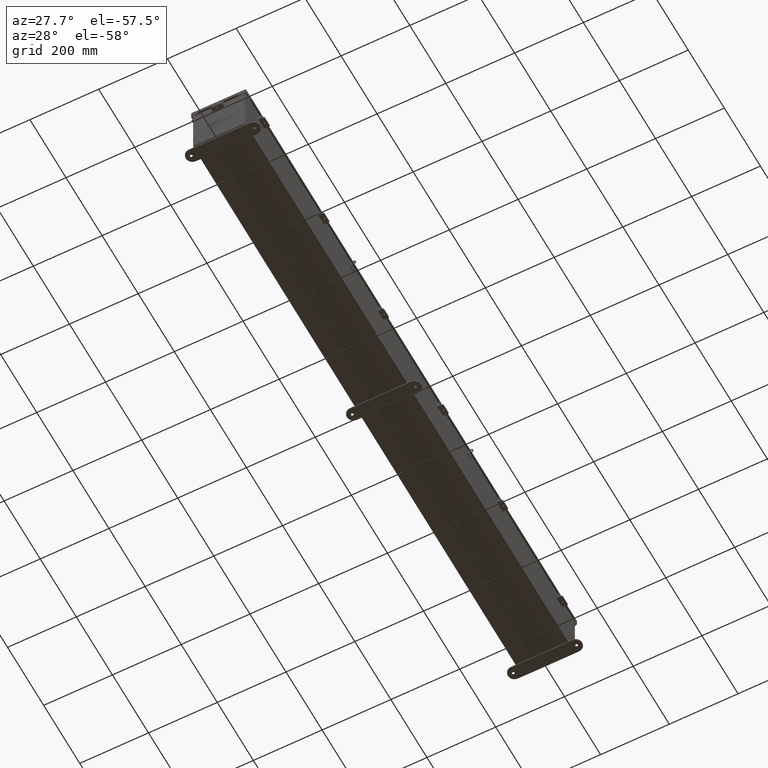
[diagram: clean part render]
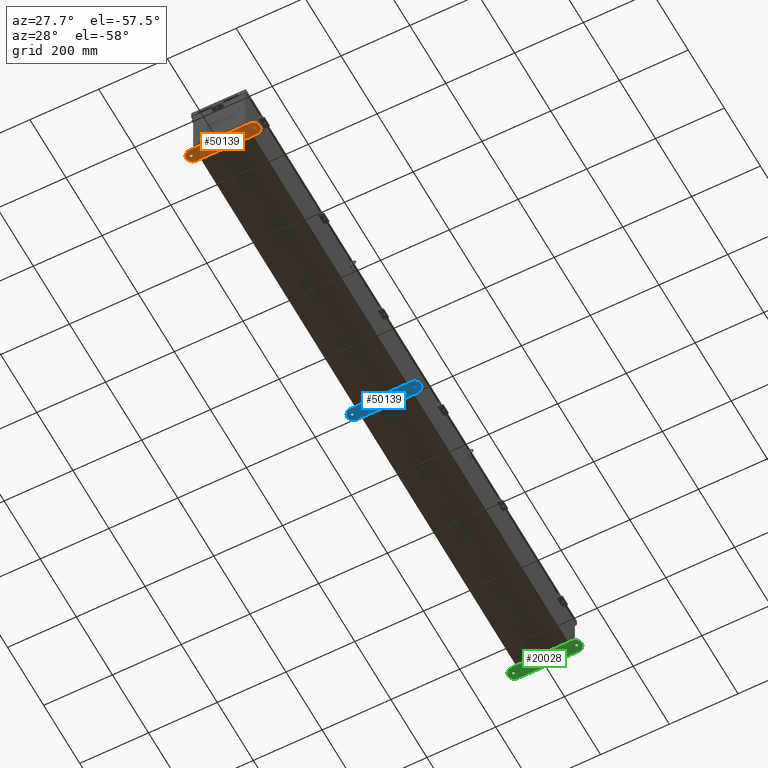
[diagram: same view with three faces highlighted in distinct colors, each labeled with its STEP entity id]
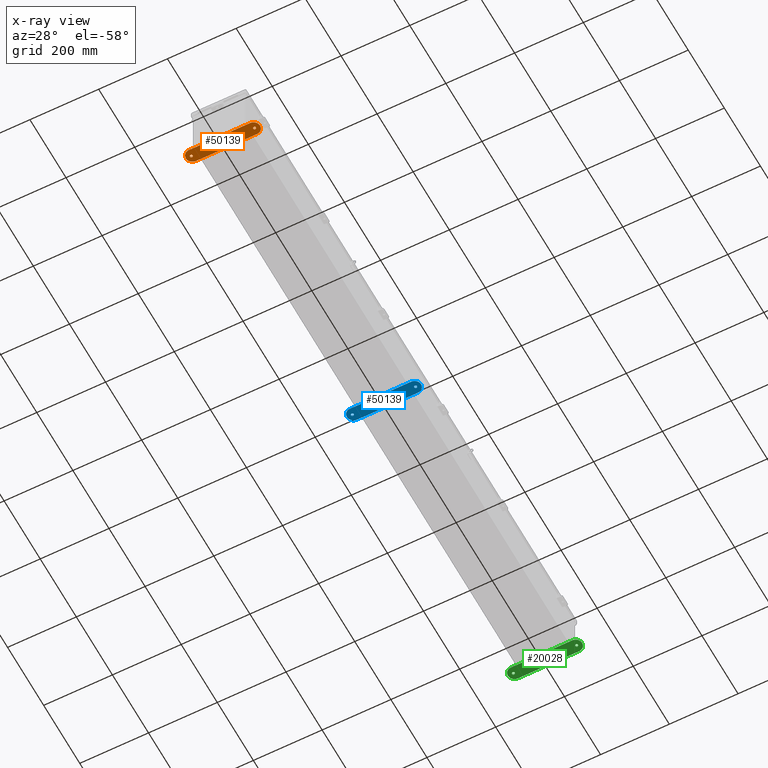
[diagram: x-ray of the same camera — body ghosted, the three highlighted faces saturated]
A machine part, auxiliary view with three faces highlighted in distinct colors.
The next image is the same camera in x-ray (body ghosted, the three faces saturated) — at least one of them is partly hidden behind the body in this view.
Their STEP definitions:

[orange] entity #50139 — the highlighted planar face has unit normal (0, 0, -1).
#367 = DIRECTION ( 'NONE',  ( -1.000000000000000000, 0.0000000000000000000, 0.0000000000000000000 ) ) ;
#595 = DIRECTION ( 'NONE',  ( 0.0000000000000000000, 0.0000000000000000000, 1.000000000000000000 ) ) ;
#829 = CIRCLE ( 'NONE', #45461, 0.1564999999999992800 ) ;
#851 = DIRECTION ( 'NONE',  ( -1.000000000000000000, 0.0000000000000000000, 0.0000000000000000000 ) ) ;
#1444 = LINE ( 'NONE', #7970, #3910 ) ;
#1623 = CARTESIAN_POINT ( 'NONE',  ( -3.499999999999998700, 1.162094064949611600, -0.1345000000000000100 ) ) ;
#1906 = DIRECTION ( 'NONE',  ( -0.0000000000000000000, -0.0000000000000000000, 1.000000000000000000 ) ) ;
#3080 = AXIS2_PLACEMENT_3D ( 'NONE', #13737, #40896, #17704 ) ;
#3364 = EDGE_CURVE ( 'NONE', #18814, #36444, #39727, .T. ) ;
#3569 = VERTEX_POINT ( 'NONE', #29170 ) ;
#3910 = VECTOR ( 'NONE', #11819, 39.37007874015748100 ) ;
#5146 = DIRECTION ( 'NONE',  ( -0.0000000000000000000, -0.0000000000000000000, 1.000000000000000000 ) ) ;
#5748 = CARTESIAN_POINT ( 'NONE',  ( 3.500000000000000000, 0.4120940649496110900, -0.1345000000000000100 ) ) ;
#6336 = ORIENTED_EDGE ( 'NONE', *, *, #3364, .F. ) ;
#7156 = CIRCLE ( 'NONE', #26383, 0.1564999999999992800 ) ;
#7385 = VERTEX_POINT ( 'NONE', #27928 ) ;
#7575 = PLANE ( 'NONE',  #17043 ) ;
#7843 = EDGE_LOOP ( 'NONE', ( #6336, #21450, #16777, #21149, #40848 ) ) ;
#7970 = CARTESIAN_POINT ( 'NONE',  ( -3.499999999999998700, 1.162094064949611600, -0.1345000000000000100 ) ) ;
#10778 = AXIS2_PLACEMENT_3D ( 'NONE', #46784, #23636, #367 ) ;
#11819 = DIRECTION ( 'NONE',  ( -1.000000000000000000, -1.170791997284684700E-016, 0.0000000000000000000 ) ) ;
#13503 = CARTESIAN_POINT ( 'NONE',  ( -3.468500000000001000, 0.4120940649496067100, -0.1345000000000000100 ) ) ;
#13534 = EDGE_CURVE ( 'NONE', #38538, #7385, #7156, .T. ) ;
#13737 = CARTESIAN_POINT ( 'NONE',  ( -3.499999999999998700, 0.4120940649496110900, -0.1345000000000000100 ) ) ;
#15306 = DIRECTION ( 'NONE',  ( 0.0000000000000000000, 0.0000000000000000000, -1.000000000000000000 ) ) ;
#15398 = EDGE_LOOP ( 'NONE', ( #44197, #49001 ) ) ;
#15469 = DIRECTION ( 'NONE',  ( 0.0000000000000000000, 0.0000000000000000000, -1.000000000000000000 ) ) ;
#15722 = EDGE_CURVE ( 'NONE', #3569, #48501, #1444, .T. ) ;
#16777 = ORIENTED_EDGE ( 'NONE', *, *, #41522, .F. ) ;
#16793 = CARTESIAN_POINT ( 'NONE',  ( 3.468500000000001000, 0.4120940649496067100, -0.1345000000000000100 ) ) ;
#16858 = FACE_OUTER_BOUND ( 'NONE', #7843, .T. ) ;
#17043 = AXIS2_PLACEMENT_3D ( 'NONE', #46169, #15306, #42425 ) ;
#17704 = DIRECTION ( 'NONE',  ( 1.000000000000000000, 0.0000000000000000000, 0.0000000000000000000 ) ) ;
#18814 = VERTEX_POINT ( 'NONE', #44374 ) ;
#19792 = EDGE_CURVE ( 'NONE', #40155, #26248, #829, .T. ) ;
#20042 = CIRCLE ( 'NONE', #10778, 0.1564999999999992800 ) ;
#20311 = ORIENTED_EDGE ( 'NONE', *, *, #19792, .F. ) ;
#21149 = ORIENTED_EDGE ( 'NONE', *, *, #15722, .F. ) ;
#21203 = CIRCLE ( 'NONE', #48548, 0.1564999999999992800 ) ;
#21450 = ORIENTED_EDGE ( 'NONE', *, *, #36392, .F. ) ;
#22580 = EDGE_CURVE ( 'NONE', #7385, #38538, #21203, .T. ) ;
#23636 = DIRECTION ( 'NONE',  ( 0.0000000000000000000, 0.0000000000000000000, -1.000000000000000000 ) ) ;
#23857 = CARTESIAN_POINT ( 'NONE',  ( 3.500000000000000000, 0.4120940649496110900, -0.1345000000000000100 ) ) ;
#25155 = CARTESIAN_POINT ( 'NONE',  ( -3.625000000000000400, 0.4120940649496067100, -0.1345000000000000100 ) ) ;
#26248 = VERTEX_POINT ( 'NONE', #30660 ) ;
#26383 = AXIS2_PLACEMENT_3D ( 'NONE', #28347, #5146, #32242 ) ;
#26844 = AXIS2_PLACEMENT_3D ( 'NONE', #23857, #595, #27750 ) ;
#27750 = DIRECTION ( 'NONE',  ( -1.000000000000000000, 0.0000000000000000000, 0.0000000000000000000 ) ) ;
#27928 = CARTESIAN_POINT ( 'NONE',  ( -3.781499999999999400, 0.4120940649496067100, -0.1345000000000000100 ) ) ;
#28221 = DIRECTION ( 'NONE',  ( 0.0000000000000000000, 0.0000000000000000000, 1.000000000000000000 ) ) ;
#28347 = CARTESIAN_POINT ( 'NONE',  ( -3.625000000000000400, 0.4120940649496067100, -0.1345000000000000100 ) ) ;
#29043 = DIRECTION ( 'NONE',  ( -1.000000000000000000, 0.0000000000000000000, 0.0000000000000000000 ) ) ;
#29170 = CARTESIAN_POINT ( 'NONE',  ( 3.499999999999998700, 1.162094064949611600, -0.1345000000000000100 ) ) ;
#30660 = CARTESIAN_POINT ( 'NONE',  ( 3.781499999999999400, 0.4120940649496067100, -0.1345000000000000100 ) ) ;
#30782 = CARTESIAN_POINT ( 'NONE',  ( -3.499999999999998700, -0.3379059350503894100, -0.1345000000000000100 ) ) ;
#31375 = VERTEX_POINT ( 'NONE', #46122 ) ;
#32181 = AXIS2_PLACEMENT_3D ( 'NONE', #5748, #28221, #851 ) ;
#32242 = DIRECTION ( 'NONE',  ( -1.000000000000000000, 0.0000000000000000000, 0.0000000000000000000 ) ) ;
#33735 = CIRCLE ( 'NONE', #26844, 0.7500000000000010000 ) ;
#34676 = DIRECTION ( 'NONE',  ( 1.000000000000000000, -1.170791997284684700E-016, 0.0000000000000000000 ) ) ;
#34848 = CARTESIAN_POINT ( 'NONE',  ( 4.250000000000000900, 0.4120940649496110900, -0.1345000000000000100 ) ) ;
#35604 = VECTOR ( 'NONE', #34676, 39.37007874015748100 ) ;
#36283 = FACE_BOUND ( 'NONE', #44904, .T. ) ;
#36392 = EDGE_CURVE ( 'NONE', #31375, #18814, #36823, .T. ) ;
#36444 = VERTEX_POINT ( 'NONE', #34848 ) ;
#36823 = LINE ( 'NONE', #30782, #35604 ) ;
#38538 = VERTEX_POINT ( 'NONE', #13503 ) ;
#38697 = CARTESIAN_POINT ( 'NONE',  ( 3.625000000000000400, 0.4120940649496067100, -0.1345000000000000100 ) ) ;
#39727 = CIRCLE ( 'NONE', #32181, 0.7500000000000010000 ) ;
#40155 = VERTEX_POINT ( 'NONE', #16793 ) ;
#40848 = ORIENTED_EDGE ( 'NONE', *, *, #42874, .F. ) ;
#40896 = DIRECTION ( 'NONE',  ( 0.0000000000000000000, 0.0000000000000000000, 1.000000000000000000 ) ) ;
#41522 = EDGE_CURVE ( 'NONE', #48501, #31375, #45883, .T. ) ;
#42425 = DIRECTION ( 'NONE',  ( -1.000000000000000000, 0.0000000000000000000, 0.0000000000000000000 ) ) ;
#42572 = DIRECTION ( 'NONE',  ( -1.000000000000000000, 0.0000000000000000000, 0.0000000000000000000 ) ) ;
#42874 = EDGE_CURVE ( 'NONE', #36444, #3569, #33735, .T. ) ;
#42886 = ORIENTED_EDGE ( 'NONE', *, *, #48982, .F. ) ;
#44197 = ORIENTED_EDGE ( 'NONE', *, *, #13534, .T. ) ;
#44374 = CARTESIAN_POINT ( 'NONE',  ( 3.499999999999998700, -0.3379059350503894100, -0.1345000000000000100 ) ) ;
#44904 = EDGE_LOOP ( 'NONE', ( #42886, #20311 ) ) ;
#45461 = AXIS2_PLACEMENT_3D ( 'NONE', #38697, #15469, #42572 ) ;
#45883 = CIRCLE ( 'NONE', #3080, 0.7499999999999998900 ) ;
#46122 = CARTESIAN_POINT ( 'NONE',  ( -3.499999999999998700, -0.3379059350503894100, -0.1345000000000000100 ) ) ;
#46169 = CARTESIAN_POINT ( 'NONE',  ( 3.500000000000000000, 0.4120940649496110900, -0.1345000000000000100 ) ) ;
#46543 = FACE_BOUND ( 'NONE', #15398, .T. ) ;
#46784 = CARTESIAN_POINT ( 'NONE',  ( 3.625000000000000400, 0.4120940649496067100, -0.1345000000000000100 ) ) ;
#48501 = VERTEX_POINT ( 'NONE', #1623 ) ;
#48548 = AXIS2_PLACEMENT_3D ( 'NONE', #25155, #1906, #29043 ) ;
#48982 = EDGE_CURVE ( 'NONE', #26248, #40155, #20042, .T. ) ;
#49001 = ORIENTED_EDGE ( 'NONE', *, *, #22580, .T. ) ;
#50139 = ADVANCED_FACE ( 'NONE', ( #16858, #46543, #36283 ), #7575, .T. ) ;

[blue] entity #50139 — the highlighted planar face has unit normal (0, 0, -1).
#367 = DIRECTION ( 'NONE',  ( -1.000000000000000000, 0.0000000000000000000, 0.0000000000000000000 ) ) ;
#595 = DIRECTION ( 'NONE',  ( 0.0000000000000000000, 0.0000000000000000000, 1.000000000000000000 ) ) ;
#829 = CIRCLE ( 'NONE', #45461, 0.1564999999999992800 ) ;
#851 = DIRECTION ( 'NONE',  ( -1.000000000000000000, 0.0000000000000000000, 0.0000000000000000000 ) ) ;
#1444 = LINE ( 'NONE', #7970, #3910 ) ;
#1623 = CARTESIAN_POINT ( 'NONE',  ( -3.499999999999998700, 1.162094064949611600, -0.1345000000000000100 ) ) ;
#1906 = DIRECTION ( 'NONE',  ( -0.0000000000000000000, -0.0000000000000000000, 1.000000000000000000 ) ) ;
#3080 = AXIS2_PLACEMENT_3D ( 'NONE', #13737, #40896, #17704 ) ;
#3364 = EDGE_CURVE ( 'NONE', #18814, #36444, #39727, .T. ) ;
#3569 = VERTEX_POINT ( 'NONE', #29170 ) ;
#3910 = VECTOR ( 'NONE', #11819, 39.37007874015748100 ) ;
#5146 = DIRECTION ( 'NONE',  ( -0.0000000000000000000, -0.0000000000000000000, 1.000000000000000000 ) ) ;
#5748 = CARTESIAN_POINT ( 'NONE',  ( 3.500000000000000000, 0.4120940649496110900, -0.1345000000000000100 ) ) ;
#6336 = ORIENTED_EDGE ( 'NONE', *, *, #3364, .F. ) ;
#7156 = CIRCLE ( 'NONE', #26383, 0.1564999999999992800 ) ;
#7385 = VERTEX_POINT ( 'NONE', #27928 ) ;
#7575 = PLANE ( 'NONE',  #17043 ) ;
#7843 = EDGE_LOOP ( 'NONE', ( #6336, #21450, #16777, #21149, #40848 ) ) ;
#7970 = CARTESIAN_POINT ( 'NONE',  ( -3.499999999999998700, 1.162094064949611600, -0.1345000000000000100 ) ) ;
#10778 = AXIS2_PLACEMENT_3D ( 'NONE', #46784, #23636, #367 ) ;
#11819 = DIRECTION ( 'NONE',  ( -1.000000000000000000, -1.170791997284684700E-016, 0.0000000000000000000 ) ) ;
#13503 = CARTESIAN_POINT ( 'NONE',  ( -3.468500000000001000, 0.4120940649496067100, -0.1345000000000000100 ) ) ;
#13534 = EDGE_CURVE ( 'NONE', #38538, #7385, #7156, .T. ) ;
#13737 = CARTESIAN_POINT ( 'NONE',  ( -3.499999999999998700, 0.4120940649496110900, -0.1345000000000000100 ) ) ;
#15306 = DIRECTION ( 'NONE',  ( 0.0000000000000000000, 0.0000000000000000000, -1.000000000000000000 ) ) ;
#15398 = EDGE_LOOP ( 'NONE', ( #44197, #49001 ) ) ;
#15469 = DIRECTION ( 'NONE',  ( 0.0000000000000000000, 0.0000000000000000000, -1.000000000000000000 ) ) ;
#15722 = EDGE_CURVE ( 'NONE', #3569, #48501, #1444, .T. ) ;
#16777 = ORIENTED_EDGE ( 'NONE', *, *, #41522, .F. ) ;
#16793 = CARTESIAN_POINT ( 'NONE',  ( 3.468500000000001000, 0.4120940649496067100, -0.1345000000000000100 ) ) ;
#16858 = FACE_OUTER_BOUND ( 'NONE', #7843, .T. ) ;
#17043 = AXIS2_PLACEMENT_3D ( 'NONE', #46169, #15306, #42425 ) ;
#17704 = DIRECTION ( 'NONE',  ( 1.000000000000000000, 0.0000000000000000000, 0.0000000000000000000 ) ) ;
#18814 = VERTEX_POINT ( 'NONE', #44374 ) ;
#19792 = EDGE_CURVE ( 'NONE', #40155, #26248, #829, .T. ) ;
#20042 = CIRCLE ( 'NONE', #10778, 0.1564999999999992800 ) ;
#20311 = ORIENTED_EDGE ( 'NONE', *, *, #19792, .F. ) ;
#21149 = ORIENTED_EDGE ( 'NONE', *, *, #15722, .F. ) ;
#21203 = CIRCLE ( 'NONE', #48548, 0.1564999999999992800 ) ;
#21450 = ORIENTED_EDGE ( 'NONE', *, *, #36392, .F. ) ;
#22580 = EDGE_CURVE ( 'NONE', #7385, #38538, #21203, .T. ) ;
#23636 = DIRECTION ( 'NONE',  ( 0.0000000000000000000, 0.0000000000000000000, -1.000000000000000000 ) ) ;
#23857 = CARTESIAN_POINT ( 'NONE',  ( 3.500000000000000000, 0.4120940649496110900, -0.1345000000000000100 ) ) ;
#25155 = CARTESIAN_POINT ( 'NONE',  ( -3.625000000000000400, 0.4120940649496067100, -0.1345000000000000100 ) ) ;
#26248 = VERTEX_POINT ( 'NONE', #30660 ) ;
#26383 = AXIS2_PLACEMENT_3D ( 'NONE', #28347, #5146, #32242 ) ;
#26844 = AXIS2_PLACEMENT_3D ( 'NONE', #23857, #595, #27750 ) ;
#27750 = DIRECTION ( 'NONE',  ( -1.000000000000000000, 0.0000000000000000000, 0.0000000000000000000 ) ) ;
#27928 = CARTESIAN_POINT ( 'NONE',  ( -3.781499999999999400, 0.4120940649496067100, -0.1345000000000000100 ) ) ;
#28221 = DIRECTION ( 'NONE',  ( 0.0000000000000000000, 0.0000000000000000000, 1.000000000000000000 ) ) ;
#28347 = CARTESIAN_POINT ( 'NONE',  ( -3.625000000000000400, 0.4120940649496067100, -0.1345000000000000100 ) ) ;
#29043 = DIRECTION ( 'NONE',  ( -1.000000000000000000, 0.0000000000000000000, 0.0000000000000000000 ) ) ;
#29170 = CARTESIAN_POINT ( 'NONE',  ( 3.499999999999998700, 1.162094064949611600, -0.1345000000000000100 ) ) ;
#30660 = CARTESIAN_POINT ( 'NONE',  ( 3.781499999999999400, 0.4120940649496067100, -0.1345000000000000100 ) ) ;
#30782 = CARTESIAN_POINT ( 'NONE',  ( -3.499999999999998700, -0.3379059350503894100, -0.1345000000000000100 ) ) ;
#31375 = VERTEX_POINT ( 'NONE', #46122 ) ;
#32181 = AXIS2_PLACEMENT_3D ( 'NONE', #5748, #28221, #851 ) ;
#32242 = DIRECTION ( 'NONE',  ( -1.000000000000000000, 0.0000000000000000000, 0.0000000000000000000 ) ) ;
#33735 = CIRCLE ( 'NONE', #26844, 0.7500000000000010000 ) ;
#34676 = DIRECTION ( 'NONE',  ( 1.000000000000000000, -1.170791997284684700E-016, 0.0000000000000000000 ) ) ;
#34848 = CARTESIAN_POINT ( 'NONE',  ( 4.250000000000000900, 0.4120940649496110900, -0.1345000000000000100 ) ) ;
#35604 = VECTOR ( 'NONE', #34676, 39.37007874015748100 ) ;
#36283 = FACE_BOUND ( 'NONE', #44904, .T. ) ;
#36392 = EDGE_CURVE ( 'NONE', #31375, #18814, #36823, .T. ) ;
#36444 = VERTEX_POINT ( 'NONE', #34848 ) ;
#36823 = LINE ( 'NONE', #30782, #35604 ) ;
#38538 = VERTEX_POINT ( 'NONE', #13503 ) ;
#38697 = CARTESIAN_POINT ( 'NONE',  ( 3.625000000000000400, 0.4120940649496067100, -0.1345000000000000100 ) ) ;
#39727 = CIRCLE ( 'NONE', #32181, 0.7500000000000010000 ) ;
#40155 = VERTEX_POINT ( 'NONE', #16793 ) ;
#40848 = ORIENTED_EDGE ( 'NONE', *, *, #42874, .F. ) ;
#40896 = DIRECTION ( 'NONE',  ( 0.0000000000000000000, 0.0000000000000000000, 1.000000000000000000 ) ) ;
#41522 = EDGE_CURVE ( 'NONE', #48501, #31375, #45883, .T. ) ;
#42425 = DIRECTION ( 'NONE',  ( -1.000000000000000000, 0.0000000000000000000, 0.0000000000000000000 ) ) ;
#42572 = DIRECTION ( 'NONE',  ( -1.000000000000000000, 0.0000000000000000000, 0.0000000000000000000 ) ) ;
#42874 = EDGE_CURVE ( 'NONE', #36444, #3569, #33735, .T. ) ;
#42886 = ORIENTED_EDGE ( 'NONE', *, *, #48982, .F. ) ;
#44197 = ORIENTED_EDGE ( 'NONE', *, *, #13534, .T. ) ;
#44374 = CARTESIAN_POINT ( 'NONE',  ( 3.499999999999998700, -0.3379059350503894100, -0.1345000000000000100 ) ) ;
#44904 = EDGE_LOOP ( 'NONE', ( #42886, #20311 ) ) ;
#45461 = AXIS2_PLACEMENT_3D ( 'NONE', #38697, #15469, #42572 ) ;
#45883 = CIRCLE ( 'NONE', #3080, 0.7499999999999998900 ) ;
#46122 = CARTESIAN_POINT ( 'NONE',  ( -3.499999999999998700, -0.3379059350503894100, -0.1345000000000000100 ) ) ;
#46169 = CARTESIAN_POINT ( 'NONE',  ( 3.500000000000000000, 0.4120940649496110900, -0.1345000000000000100 ) ) ;
#46543 = FACE_BOUND ( 'NONE', #15398, .T. ) ;
#46784 = CARTESIAN_POINT ( 'NONE',  ( 3.625000000000000400, 0.4120940649496067100, -0.1345000000000000100 ) ) ;
#48501 = VERTEX_POINT ( 'NONE', #1623 ) ;
#48548 = AXIS2_PLACEMENT_3D ( 'NONE', #25155, #1906, #29043 ) ;
#48982 = EDGE_CURVE ( 'NONE', #26248, #40155, #20042, .T. ) ;
#49001 = ORIENTED_EDGE ( 'NONE', *, *, #22580, .T. ) ;
#50139 = ADVANCED_FACE ( 'NONE', ( #16858, #46543, #36283 ), #7575, .T. ) ;

[green] entity #20028 — the highlighted planar face has unit normal (0, 0, 1).
#167 = FACE_BOUND ( 'NONE', #47482, .T. ) ;
#257 = EDGE_CURVE ( 'NONE', #11497, #11694, #16347, .T. ) ;
#714 = DIRECTION ( 'NONE',  ( 0.0000000000000000000, 0.0000000000000000000, -1.000000000000000000 ) ) ;
#1062 = LINE ( 'NONE', #37461, #18045 ) ;
#1407 = DIRECTION ( 'NONE',  ( 0.0000000000000000000, 0.0000000000000000000, -1.000000000000000000 ) ) ;
#1467 = CARTESIAN_POINT ( 'NONE',  ( 3.500000000000000000, 0.4120940649496110900, 0.0000000000000000000 ) ) ;
#1682 = CIRCLE ( 'NONE', #10911, 0.1564999999999992800 ) ;
#2351 = ORIENTED_EDGE ( 'NONE', *, *, #16926, .F. ) ;
#2986 = CARTESIAN_POINT ( 'NONE',  ( 4.250000000000000900, 0.4120940649496110900, 0.0000000000000000000 ) ) ;
#3353 = CARTESIAN_POINT ( 'NONE',  ( 3.625000000000000400, 0.4120940649496067100, 0.0000000000000000000 ) ) ;
#4188 = VERTEX_POINT ( 'NONE', #11578 ) ;
#4744 = ORIENTED_EDGE ( 'NONE', *, *, #32757, .T. ) ;
#5235 = CARTESIAN_POINT ( 'NONE',  ( 3.468500000000001000, 0.4120940649496067100, 0.0000000000000000000 ) ) ;
#5420 = DIRECTION ( 'NONE',  ( -1.000000000000000000, 0.0000000000000000000, 0.0000000000000000000 ) ) ;
#6584 = EDGE_CURVE ( 'NONE', #11694, #15293, #1062, .T. ) ;
#7260 = DIRECTION ( 'NONE',  ( -1.000000000000000000, 0.0000000000000000000, 0.0000000000000000000 ) ) ;
#7462 = VERTEX_POINT ( 'NONE', #5235 ) ;
#10009 = VECTOR ( 'NONE', #32916, 39.37007874015748100 ) ;
#10493 = FACE_OUTER_BOUND ( 'NONE', #35568, .T. ) ;
#10634 = ORIENTED_EDGE ( 'NONE', *, *, #20921, .T. ) ;
#10832 = ORIENTED_EDGE ( 'NONE', *, *, #21454, .F. ) ;
#10911 = AXIS2_PLACEMENT_3D ( 'NONE', #3353, #30454, #7260 ) ;
#11441 = CARTESIAN_POINT ( 'NONE',  ( -3.468500000000001000, 0.4120940649496067100, 0.0000000000000000000 ) ) ;
#11497 = VERTEX_POINT ( 'NONE', #2986 ) ;
#11578 = CARTESIAN_POINT ( 'NONE',  ( 3.499999999999998700, -0.3379059350503894100, 0.0000000000000000000 ) ) ;
#11694 = VERTEX_POINT ( 'NONE', #39029 ) ;
#12240 = VERTEX_POINT ( 'NONE', #43373 ) ;
#12554 = CARTESIAN_POINT ( 'NONE',  ( -3.781499999999999400, 0.4120940649496067100, 0.0000000000000000000 ) ) ;
#13200 = CARTESIAN_POINT ( 'NONE',  ( -3.625000000000000400, 0.4120940649496067100, 0.0000000000000000000 ) ) ;
#13934 = CARTESIAN_POINT ( 'NONE',  ( 3.781499999999999400, 0.4120940649496067100, 0.0000000000000000000 ) ) ;
#14521 = AXIS2_PLACEMENT_3D ( 'NONE', #23976, #714, #27876 ) ;
#14631 = AXIS2_PLACEMENT_3D ( 'NONE', #46037, #22858, #49933 ) ;
#15293 = VERTEX_POINT ( 'NONE', #16975 ) ;
#15313 = CIRCLE ( 'NONE', #34308, 0.7500000000000010000 ) ;
#15465 = ORIENTED_EDGE ( 'NONE', *, *, #6584, .T. ) ;
#16347 = CIRCLE ( 'NONE', #45324, 0.7500000000000010000 ) ;
#16926 = EDGE_CURVE ( 'NONE', #37049, #43072, #21352, .T. ) ;
#16975 = CARTESIAN_POINT ( 'NONE',  ( -3.499999999999998700, 1.162094064949611600, 0.0000000000000000000 ) ) ;
#17122 = DIRECTION ( 'NONE',  ( 1.000000000000000000, 0.0000000000000000000, 0.0000000000000000000 ) ) ;
#18045 = VECTOR ( 'NONE', #33579, 39.37007874015748100 ) ;
#20028 = ADVANCED_FACE ( 'NONE', ( #10493, #31153, #167 ), #36175, .F. ) ;
#20921 = EDGE_CURVE ( 'NONE', #15293, #12240, #31053, .T. ) ;
#21352 = CIRCLE ( 'NONE', #32761, 0.1564999999999992800 ) ;
#21382 = CARTESIAN_POINT ( 'NONE',  ( -3.499999999999998700, -0.3379059350503894100, 0.0000000000000000000 ) ) ;
#21454 = EDGE_CURVE ( 'NONE', #43072, #37049, #37646, .T. ) ;
#21529 = DIRECTION ( 'NONE',  ( 0.0000000000000000000, 0.0000000000000000000, 1.000000000000000000 ) ) ;
#22858 = DIRECTION ( 'NONE',  ( 0.0000000000000000000, 0.0000000000000000000, 1.000000000000000000 ) ) ;
#23469 = EDGE_CURVE ( 'NONE', #7462, #39255, #1682, .T. ) ;
#23976 = CARTESIAN_POINT ( 'NONE',  ( 3.625000000000000400, 0.4120940649496067100, 0.0000000000000000000 ) ) ;
#27876 = DIRECTION ( 'NONE',  ( -1.000000000000000000, 0.0000000000000000000, 0.0000000000000000000 ) ) ;
#28554 = DIRECTION ( 'NONE',  ( -1.000000000000000000, 0.0000000000000000000, 0.0000000000000000000 ) ) ;
#28605 = DIRECTION ( 'NONE',  ( 0.0000000000000000000, 0.0000000000000000000, 1.000000000000000000 ) ) ;
#29894 = CARTESIAN_POINT ( 'NONE',  ( 3.500000000000000000, 0.4120940649496110900, 0.0000000000000000000 ) ) ;
#30454 = DIRECTION ( 'NONE',  ( 0.0000000000000000000, 0.0000000000000000000, -1.000000000000000000 ) ) ;
#31053 = CIRCLE ( 'NONE', #14631, 0.7499999999999998900 ) ;
#31153 = FACE_BOUND ( 'NONE', #39292, .T. ) ;
#31730 = EDGE_CURVE ( 'NONE', #12240, #4188, #31880, .T. ) ;
#31788 = ORIENTED_EDGE ( 'NONE', *, *, #23469, .T. ) ;
#31880 = LINE ( 'NONE', #21382, #10009 ) ;
#32706 = DIRECTION ( 'NONE',  ( -1.000000000000000000, 0.0000000000000000000, 0.0000000000000000000 ) ) ;
#32757 = EDGE_CURVE ( 'NONE', #4188, #11497, #15313, .T. ) ;
#32761 = AXIS2_PLACEMENT_3D ( 'NONE', #13200, #40326, #17122 ) ;
#32916 = DIRECTION ( 'NONE',  ( 1.000000000000000000, -1.170791997284684700E-016, 0.0000000000000000000 ) ) ;
#33579 = DIRECTION ( 'NONE',  ( -1.000000000000000000, -1.170791997284684700E-016, 0.0000000000000000000 ) ) ;
#34308 = AXIS2_PLACEMENT_3D ( 'NONE', #1467, #28605, #5420 ) ;
#35568 = EDGE_LOOP ( 'NONE', ( #4744, #44537, #15465, #10634, #36268 ) ) ;
#36175 = PLANE ( 'NONE',  #49710 ) ;
#36268 = ORIENTED_EDGE ( 'NONE', *, *, #31730, .T. ) ;
#37049 = VERTEX_POINT ( 'NONE', #12554 ) ;
#37265 = CIRCLE ( 'NONE', #14521, 0.1564999999999992800 ) ;
#37461 = CARTESIAN_POINT ( 'NONE',  ( -3.499999999999998700, 1.162094064949611600, 0.0000000000000000000 ) ) ;
#37646 = CIRCLE ( 'NONE', #50075, 0.1564999999999992800 ) ;
#39029 = CARTESIAN_POINT ( 'NONE',  ( 3.499999999999998700, 1.162094064949611600, 0.0000000000000000000 ) ) ;
#39255 = VERTEX_POINT ( 'NONE', #13934 ) ;
#39292 = EDGE_LOOP ( 'NONE', ( #10832, #2351 ) ) ;
#40326 = DIRECTION ( 'NONE',  ( 0.0000000000000000000, 0.0000000000000000000, 1.000000000000000000 ) ) ;
#43072 = VERTEX_POINT ( 'NONE', #11441 ) ;
#43373 = CARTESIAN_POINT ( 'NONE',  ( -3.499999999999998700, -0.3379059350503894100, 0.0000000000000000000 ) ) ;
#43931 = CARTESIAN_POINT ( 'NONE',  ( 3.500000000000000000, 0.4120940649496110900, 0.0000000000000000000 ) ) ;
#44537 = ORIENTED_EDGE ( 'NONE', *, *, #257, .T. ) ;
#44699 = CARTESIAN_POINT ( 'NONE',  ( -3.625000000000000400, 0.4120940649496067100, 0.0000000000000000000 ) ) ;
#45324 = AXIS2_PLACEMENT_3D ( 'NONE', #29894, #45668, #32706 ) ;
#45617 = EDGE_CURVE ( 'NONE', #39255, #7462, #37265, .T. ) ;
#45668 = DIRECTION ( 'NONE',  ( 0.0000000000000000000, 0.0000000000000000000, 1.000000000000000000 ) ) ;
#46037 = CARTESIAN_POINT ( 'NONE',  ( -3.499999999999998700, 0.4120940649496110900, 0.0000000000000000000 ) ) ;
#47482 = EDGE_LOOP ( 'NONE', ( #50236, #31788 ) ) ;
#48602 = DIRECTION ( 'NONE',  ( 1.000000000000000000, 0.0000000000000000000, 0.0000000000000000000 ) ) ;
#49710 = AXIS2_PLACEMENT_3D ( 'NONE', #43931, #1407, #28554 ) ;
#49933 = DIRECTION ( 'NONE',  ( 1.000000000000000000, 0.0000000000000000000, 0.0000000000000000000 ) ) ;
#50075 = AXIS2_PLACEMENT_3D ( 'NONE', #44699, #21529, #48602 ) ;
#50236 = ORIENTED_EDGE ( 'NONE', *, *, #45617, .T. ) ;